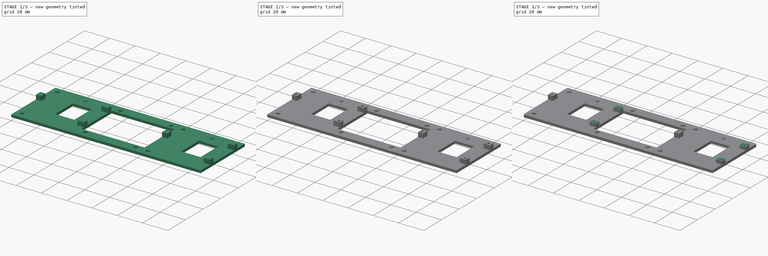
[diagram: build sequence overview — one tinted view per stage of 3, left to right]
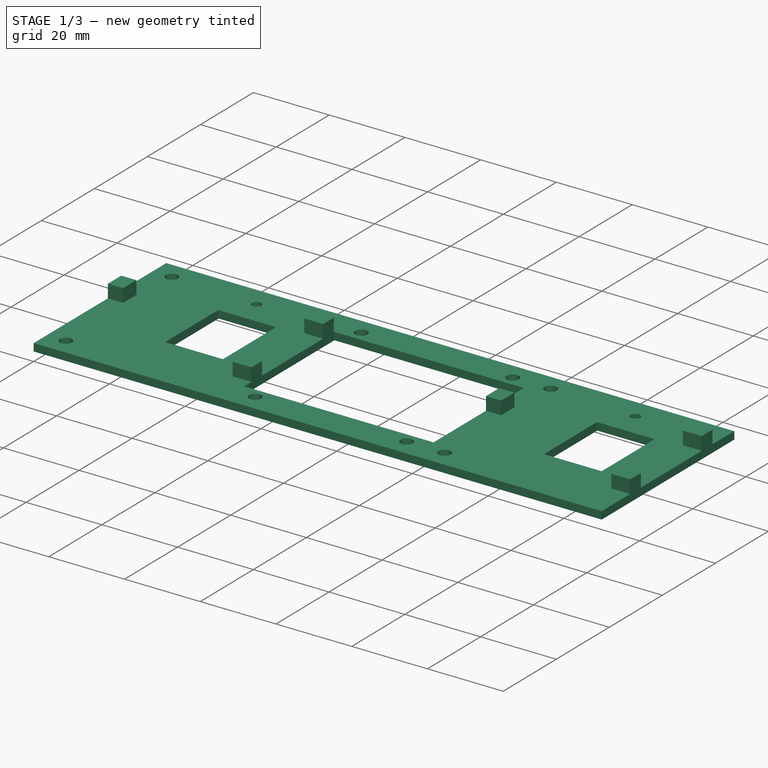
[diagram: stage 1 of 3 — iso view after this stage's code; geometry added in this stage tinted green]
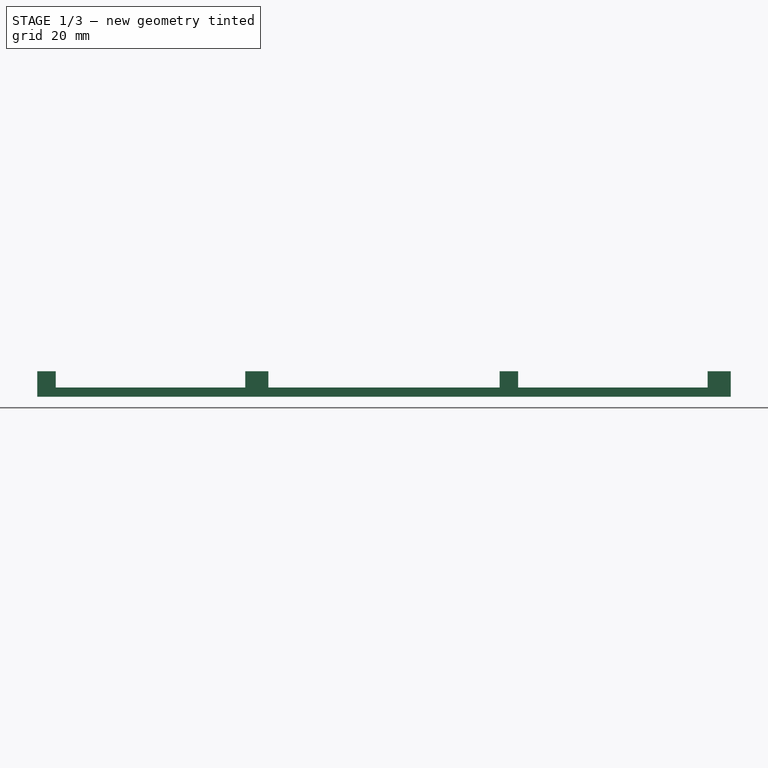
[diagram: stage 1 of 3 — front view after this stage's code; geometry added in this stage tinted green]
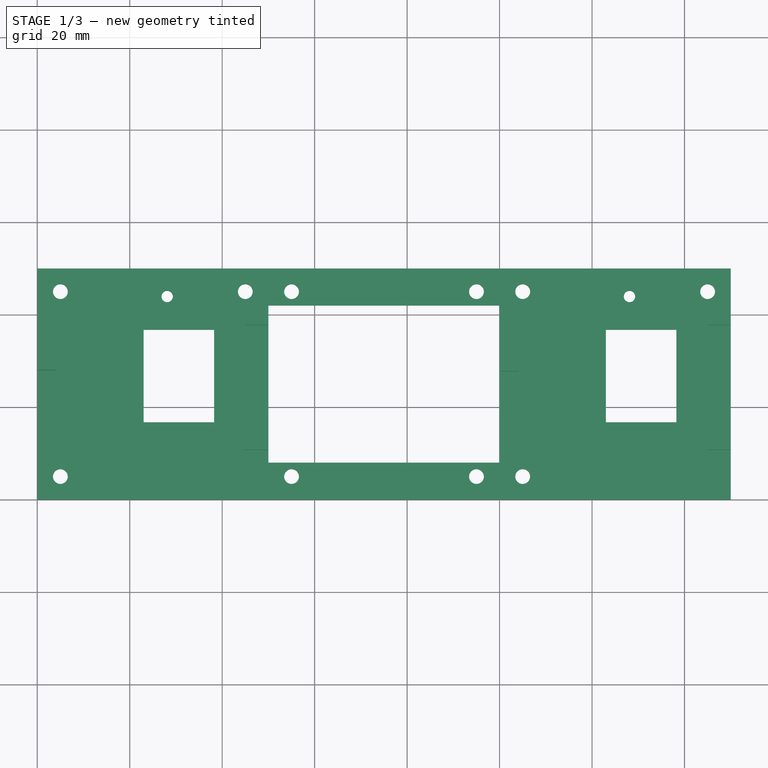
[diagram: stage 1 of 3 — top view after this stage's code; geometry added in this stage tinted green]
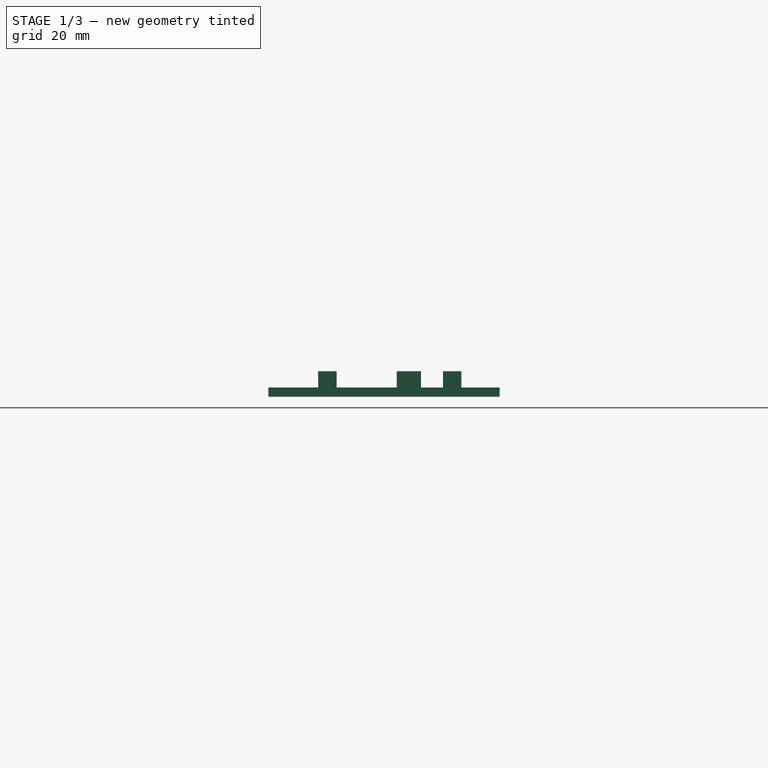
[diagram: stage 1 of 3 — right view after this stage's code; geometry added in this stage tinted green]
FCSTD DOCUMENT  (FreeCAD 0.19R24291 (Git))
Label: Adapter Plate Modified
License: All rights reserved
LicenseURL: http://en.wikipedia.org/wiki/All_rights_reserved
objects: Sketcher::SketchObject×4, PartDesign::Pad×2, PartDesign::Pocket×2, PartDesign::Fillet×1, PartDesign::Body×1
note: 15 computed .brp shape members not serialized (recipe doc carries the construction recipe); baked Part::Feature solids carry a one-line shape summary decoded from their .brp

FEATURE [Sketcher::SketchObject] Sketch
  FullyConstrained = true
  MapMode = 5
  Support = -> [XY_Plane]
  sketch-geometry (41):
    g0: LineSegment StartX=0 StartY=0 StartZ=0 EndX=150 EndY=0 EndZ=0
    g1: LineSegment StartX=150 StartY=0 StartZ=0 EndX=150 EndY=50 EndZ=0
    g2: LineSegment StartX=150 StartY=50 StartZ=0 EndX=0 EndY=50 EndZ=0
    g3: LineSegment StartX=0 StartY=50 StartZ=0 EndX=0 EndY=0 EndZ=0
    g4: LineSegment StartX=50 StartY=42 StartZ=0 EndX=100 EndY=42 EndZ=0
    g5: LineSegment StartX=100 StartY=42 StartZ=0 EndX=100 EndY=8 EndZ=0
    g6: LineSegment StartX=100 StartY=8 StartZ=0 EndX=50 EndY=8 EndZ=0
    g7: LineSegment StartX=50 StartY=8 StartZ=0 EndX=50 EndY=42 EndZ=0
    g8: LineSegment StartX=23 StartY=36.75 StartZ=0 EndX=38.25 EndY=36.75 EndZ=0
    g9: LineSegment StartX=38.25 StartY=36.75 StartZ=0 EndX=38.25 EndY=16.75 EndZ=0
    g10: LineSegment StartX=38.25 StartY=16.75 StartZ=0 EndX=23 EndY=16.75 EndZ=0
    g11: LineSegment StartX=23 StartY=16.75 StartZ=0 EndX=23 EndY=36.75 EndZ=0
    g12: LineSegment StartX=123 StartY=36.75 StartZ=0 EndX=138.25 EndY=36.75 EndZ=0
    g13: LineSegment StartX=138.25 StartY=36.75 StartZ=0 EndX=138.25 EndY=16.75 EndZ=0
    g14: LineSegment StartX=138.25 StartY=16.75 StartZ=0 EndX=123 EndY=16.75 EndZ=0
    g15: LineSegment StartX=123 StartY=16.75 StartZ=0 EndX=123 EndY=36.75 EndZ=0
    g16: Circle CenterX=5 CenterY=45 CenterZ=0 NormalX=0 NormalY=0 NormalZ=1 AngleXU=0 Radius=1.6
    g17: Circle CenterX=5 CenterY=5 CenterZ=0 NormalX=0 NormalY=0 NormalZ=1 AngleXU=0 Radius=1.6
    g18: Circle CenterX=45 CenterY=45 CenterZ=0 NormalX=0 NormalY=0 NormalZ=1 AngleXU=0 Radius=1.6
    g19: Circle CenterX=55 CenterY=45 CenterZ=0 NormalX=0 NormalY=0 NormalZ=1 AngleXU=0 Radius=1.6
    g20: Circle CenterX=55 CenterY=5 CenterZ=0 NormalX=0 NormalY=0 NormalZ=1 AngleXU=0 Radius=1.6
    g21: Circle CenterX=95 CenterY=45 CenterZ=0 NormalX=0 NormalY=0 NormalZ=1 AngleXU=0 Radius=1.6
    g22: Circle CenterX=105 CenterY=45 CenterZ=0 NormalX=0 NormalY=0 NormalZ=1 AngleXU=0 Radius=1.6
    g23: Circle CenterX=95 CenterY=5 CenterZ=0 NormalX=0 NormalY=0 NormalZ=1 AngleXU=0 Radius=1.6
    g24: Circle CenterX=105 CenterY=5 CenterZ=0 NormalX=0 NormalY=0 NormalZ=1 AngleXU=0 Radius=1.6
    g25: Circle CenterX=145 CenterY=45 CenterZ=0 NormalX=0 NormalY=0 NormalZ=1 AngleXU=0 Radius=1.6
    g26: Circle CenterX=128.1 CenterY=43.95 CenterZ=0 NormalX=0 NormalY=0 NormalZ=1 AngleXU=0 Radius=1.23
    g27: Circle CenterX=28.1 CenterY=43.95 CenterZ=0 NormalX=0 NormalY=0 NormalZ=1 AngleXU=0 Radius=1.23
    g28: LineSegment StartX=5 StartY=45 StartZ=0 EndX=45 EndY=45 EndZ=0
    g29: LineSegment StartX=45 StartY=45 StartZ=0 EndX=55 EndY=45 EndZ=0
    g30: LineSegment StartX=95 StartY=45 StartZ=0 EndX=55 EndY=45 EndZ=0
    g31: LineSegment StartX=95 StartY=45 StartZ=0 EndX=105 EndY=45 EndZ=0
    g32: LineSegment StartX=105 StartY=45 StartZ=0 EndX=145 EndY=45 EndZ=0
    g33: LineSegment StartX=5 StartY=45 StartZ=0 EndX=5 EndY=5 EndZ=0
    g34: LineSegment StartX=55 StartY=45 StartZ=0 EndX=55 EndY=5 EndZ=0
    g35: LineSegment StartX=95 StartY=45 StartZ=0 EndX=95 EndY=5 EndZ=0
    g36: LineSegment StartX=105 StartY=45 StartZ=0 EndX=105 EndY=5 EndZ=0
    g37: LineSegment StartX=5 StartY=5 StartZ=0 EndX=55 EndY=5 EndZ=0
    g38: LineSegment StartX=55 StartY=5 StartZ=0 EndX=95 EndY=5 EndZ=0
    g39: LineSegment StartX=95 StartY=5 StartZ=0 EndX=105 EndY=5 EndZ=0
    g40: LineSegment StartX=28.1 StartY=43.95 StartZ=0 EndX=128.1 EndY=43.95 EndZ=0
  constraints (109):
    c: Coincident(g0,g1)
    c: Coincident(g1,g2)
    c: Coincident(g2,g3)
    c: Coincident(g3,g0)
    c: Horizontal(g0)
    c: Horizontal(g2)
    c: Vertical(g1)
    c: Vertical(g3)
    c: Coincident(g0,g-1)
    c: DistanceX(g2,g2) = 150
    c: DistanceY(g3,g3) = 50
    c: Coincident(g4,g5)
    c: Coincident(g5,g6)
    c: Coincident(g6,g7)
    c: Coincident(g7,g4)
    c: Horizontal(g4)
    c: Horizontal(g6)
    c: Vertical(g5)
    c: Vertical(g7)
    c: Coincident(g8,g9)
    c: Coincident(g9,g10)
    c: Coincident(g10,g11)
    c: Coincident(g11,g8)
    c: Horizontal(g8)
    c: Horizontal(g10)
    c: Vertical(g9)
    c: Vertical(g11)
    c: Coincident(g12,g13)
    c: Coincident(g13,g14)
    c: Coincident(g14,g15)
    c: Coincident(g15,g12)
    c: Horizontal(g12)
    c: Horizontal(g14)
    c: Vertical(g13)
    c: Vertical(g15)
    c: Equal(g16,g17)
    c: Equal(g17,g18)
    c: Equal(g18,g19)
    c: Equal(g19,g20)
    c: Equal(g20,g23)
    c: Equal(g23,g24)
    c: Equal(g24,g22)
    c: Equal(g22,g21)
    c: Equal(g21,g25)
    c: Diameter(g16) = 3.2
    c: Equal(g27,g26)
    c: Diameter(g27) = 2.46
    c: DistanceX(g14,g14) = 15.25
    c: DistanceX(g10,g10) = 15.25
    c: DistanceX(g2,g8) = 23
    c: DistanceX(g8,g4) = 11.75
    c: DistanceX(g12,g1) = 11.75
    c: DistanceY(g11,g11) = 20
    c: DistanceY(g7,g7) = 34
    c: DistanceY(g15,g15) = 20
    c: DistanceY(g12,g1) = 13.25
    c: DistanceY(g4,g2) = 8
    c: DistanceY(g8,g2) = 13.25
    c: DistanceX(g6,g6) = 50
    c: Coincident(g28,g16)
    c: Coincident(g28,g18)
    c: Coincident(g29,g18)
    c: Coincident(g29,g19)
    c: Coincident(g30,g21)
    c: Coincident(g30,g19)
    c: Horizontal(g30)
    c: Coincident(g31,g21)
    c: Coincident(g31,g22)
    c: Coincident(g32,g22)
    c: Coincident(g32,g25)
    c: Horizontal(g32)
    c: Horizontal(g31)
    c: Horizontal(g29)
    c: Horizontal(g28)
    c: DistanceY(g16,g2) = 5
    c: DistanceX(g2,g16) = 5
    c: DistanceX(g16,g18) = 40
    c: DistanceX(g18,g19) = 10
    c: DistanceX(g19,g21) = 40
    c: DistanceX(g21,g22) = 10
    c: DistanceX(g32,g32) = 40
    c: Coincident(g33,g16)
    c: Coincident(g33,g17)
    c: Coincident(g34,g19)
    c: Coincident(g34,g20)
    c: Coincident(g35,g21)
    c: Coincident(g35,g23)
    c: Coincident(g36,g22)
    c: Coincident(g36,g24)
    c: Coincident(g37,g17)
    c: Coincident(g37,g20)
    c: Horizontal(g37)
    c: Coincident(g38,g20)
    c: Coincident(g38,g23)
    c: Horizontal(g38)
    c: Coincident(g39,g23)
    c: Coincident(g39,g24)
    c: Horizontal(g39)
    c: Vertical(g33)
    c: Vertical(g34)
    c: Vertical(g35)
    c: Vertical(g36)
    c: DistanceY(g0,g17) = 5
    c: DistanceY(g27,g2) = 6.05
    c: Coincident(g40,g27)
    c: Horizontal(g40)
    c: Coincident(g40,g26)
    c: DistanceX(g2,g27) = 28.1
    c: DistanceX(g26,g1) = 21.9
FEATURE [PartDesign::Pad] Pad
  Direction = (1,1,1)
  Length = 2
  Length2 = 100
  Profile = -> Sketch
  Type = 0
FEATURE [Sketcher::SketchObject] Sketch001
  ExternalGeometry = -> [Pad]
  FullyConstrained = true
  MapMode = 5
  Placement = pos=(0,0,2) rot=(0,0,1;0rad)
  Support = -> [Pad]
  sketch-geometry (27):
    g0: LineSegment StartX=50 StartY=41.75 StartZ=0 EndX=45 EndY=41.75 EndZ=0
    g1: LineSegment StartX=45 StartY=41.75 StartZ=0 EndX=45 EndY=37.75 EndZ=0
    g2: LineSegment StartX=45 StartY=37.75 StartZ=0 EndX=50 EndY=37.75 EndZ=0
    g3: LineSegment StartX=50 StartY=37.75 StartZ=0 EndX=50 EndY=41.75 EndZ=0
    g4: LineSegment StartX=50 StartY=14.75 StartZ=0 EndX=45 EndY=14.75 EndZ=0
    g5: LineSegment StartX=45 StartY=14.75 StartZ=0 EndX=45 EndY=10.75 EndZ=0
    g6: LineSegment StartX=45 StartY=10.75 StartZ=0 EndX=50 EndY=10.75 EndZ=0
    g7: LineSegment StartX=50 StartY=10.75 StartZ=0 EndX=50 EndY=14.75 EndZ=0
    g8: LineSegment StartX=45 StartY=37.75 StartZ=0 EndX=45 EndY=14.75 EndZ=0
    g9: LineSegment StartX=4 StartY=33 StartZ=0 EndX=-4e-16 EndY=33 EndZ=0
    g10: LineSegment StartX=-4e-16 StartY=33 StartZ=0 EndX=-4e-16 EndY=28 EndZ=0
    g11: LineSegment StartX=-4e-16 StartY=28 StartZ=0 EndX=4 EndY=28 EndZ=0
    g12: LineSegment StartX=4 StartY=28 StartZ=0 EndX=4 EndY=33 EndZ=0
    g13: LineSegment StartX=150 StartY=41.75 StartZ=0 EndX=145 EndY=41.75 EndZ=0
    g14: LineSegment StartX=145 StartY=41.75 StartZ=0 EndX=145 EndY=37.75 EndZ=0
    g15: LineSegment StartX=145 StartY=37.75 StartZ=0 EndX=150 EndY=37.75 EndZ=0
    g16: LineSegment StartX=150 StartY=37.75 StartZ=0 EndX=150 EndY=41.75 EndZ=0
    g17: LineSegment StartX=150 StartY=14.75 StartZ=0 EndX=145 EndY=14.75 EndZ=0
    g18: LineSegment StartX=145 StartY=14.75 StartZ=0 EndX=145 EndY=10.75 EndZ=0
    g19: LineSegment StartX=145 StartY=10.75 StartZ=0 EndX=150 EndY=10.75 EndZ=0
    g20: LineSegment StartX=150 StartY=10.75 StartZ=0 EndX=150 EndY=14.75 EndZ=0
    g21: LineSegment StartX=145 StartY=37.75 StartZ=0 EndX=145 EndY=14.75 EndZ=0
    g22: LineSegment StartX=104 StartY=32.75 StartZ=0 EndX=100 EndY=32.75 EndZ=0
    g23: LineSegment StartX=100 StartY=32.75 StartZ=0 EndX=100 EndY=27.75 EndZ=0
    g24: LineSegment StartX=100 StartY=27.75 StartZ=0 EndX=104 EndY=27.75 EndZ=0
    g25: LineSegment StartX=104 StartY=27.75 StartZ=0 EndX=104 EndY=32.75 EndZ=0
    g26: LineSegment StartX=50 StartY=41.75 StartZ=0 EndX=145 EndY=41.75 EndZ=0
  constraints (77):
    c: Coincident(g0,g1)
    c: Coincident(g1,g2)
    c: Coincident(g2,g3)
    c: Coincident(g3,g0)
    c: Horizontal(g0)
    c: Horizontal(g2)
    c: Vertical(g1)
    c: Vertical(g3)
    c: PointOnObject(g0,g-3)
    c: DistanceX(g0,g0) = 5
    c: DistanceY(g1,g1) = 4
    c: DistanceY(g0,g-13) = 0.25
    c: Coincident(g4,g5)
    c: Coincident(g5,g6)
    c: Coincident(g6,g7)
    c: Coincident(g7,g4)
    c: Horizontal(g4)
    c: Horizontal(g6)
    c: Vertical(g5)
    c: Vertical(g7)
    c: PointOnObject(g4,g-3)
    c: Coincident(g8,g1)
    c: Coincident(g8,g4)
    c: Vertical(g8)
    c: DistanceY(g6,g2) = 27
    c: Equal(g5,g1)
    c: Coincident(g9,g10)
    c: Coincident(g10,g11)
    c: Coincident(g11,g12)
    c: Coincident(g12,g9)
    c: Horizontal(g9)
    c: Horizontal(g11)
    c: Vertical(g10)
    c: Vertical(g12)
    c: Equal(g9,g1)
    c: Equal(g12,g0)
    c: DistanceX(g9,g0) = 46
    c: DistanceY(g9,g-13) = 9
    c: Coincident(g13,g14)
    c: Coincident(g14,g15)
    c: Coincident(g15,g16)
    c: Coincident(g16,g13)
    c: Horizontal(g13)
    c: Horizontal(g15)
    c: Vertical(g14)
    c: Vertical(g16)
    c: Equal(g0,g13) = 5
    c: Equal(g1,g14) = 4
    c: Coincident(g17,g18)
    c: Coincident(g18,g19)
    c: Coincident(g19,g20)
    c: Coincident(g20,g17)
    c: Horizontal(g17)
    c: Horizontal(g19)
    c: Vertical(g18)
    c: Coincident(g21,g14)
    c: Coincident(g21,g17)
    c: Vertical(g21)
    c: DistanceY(g19,g15) = 27
    c: Equal(g18,g14)
    c: Coincident(g22,g23)
    c: Coincident(g23,g24)
    c: Coincident(g24,g25)
    c: Coincident(g25,g22)
    c: Horizontal(g22)
    c: Horizontal(g24)
    c: Vertical(g23)
    c: Vertical(g25)
    c: Equal(g22,g14)
    c: Equal(g25,g13)
    c: DistanceX(g22,g13) = 46
    c: DistanceX(g0,g13) = 100
    c: Coincident(g26,g0)
    c: Coincident(g26,g13)
    c: Horizontal(g26)
    c: Tangent(g20,g-16)
    c: DistanceY(g22,g13) = 9
FEATURE [PartDesign::Pad] Pad001
  BaseFeature = -> Pad
  Direction = (1,1,1)
  Length = 3.5
  Length2 = 100
  Profile = -> Sketch001
  Type = 0
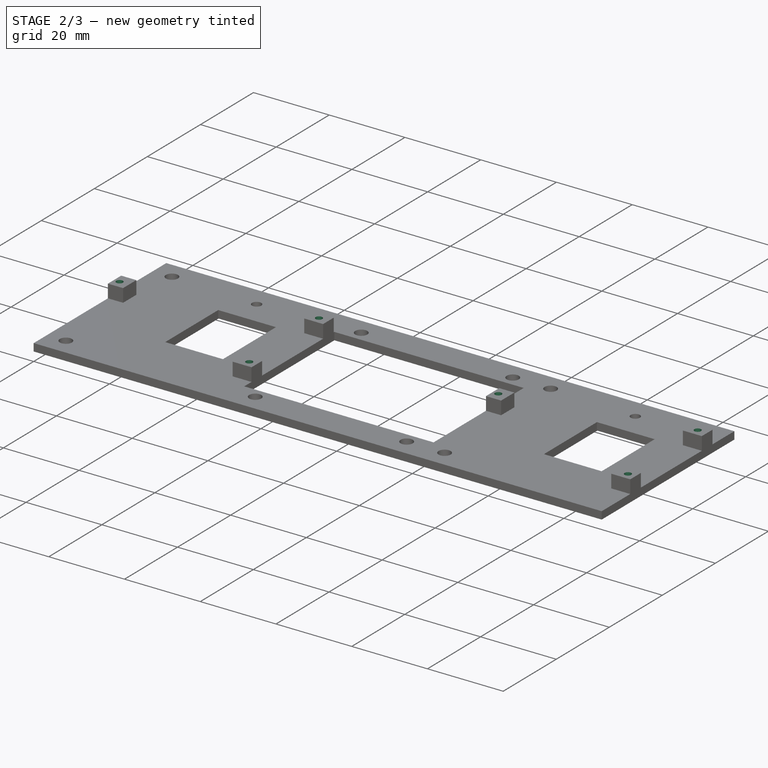
[diagram: stage 2 of 3 — iso view after this stage's code; geometry added in this stage tinted green]
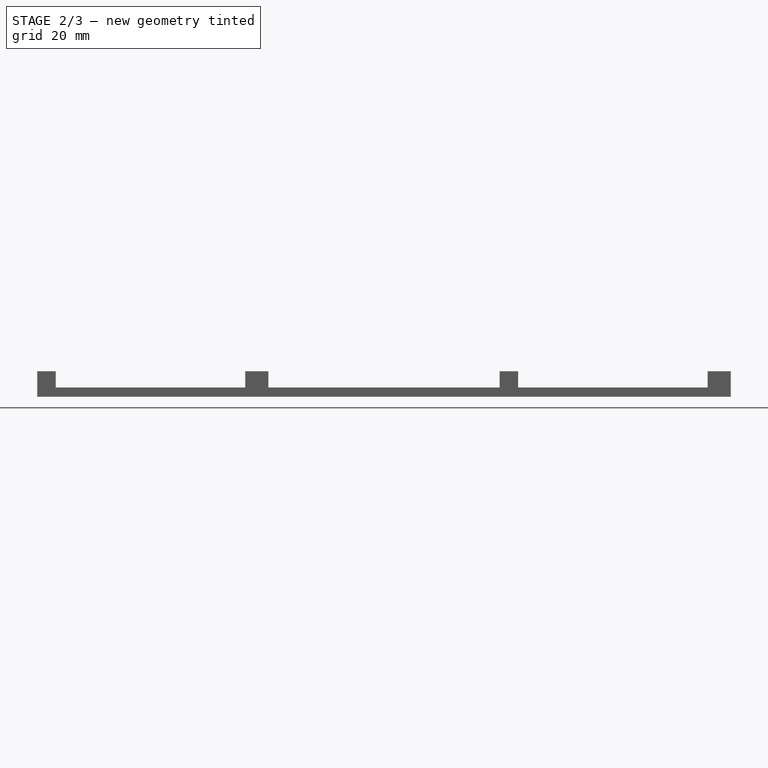
[diagram: stage 2 of 3 — front view after this stage's code; geometry added in this stage tinted green]
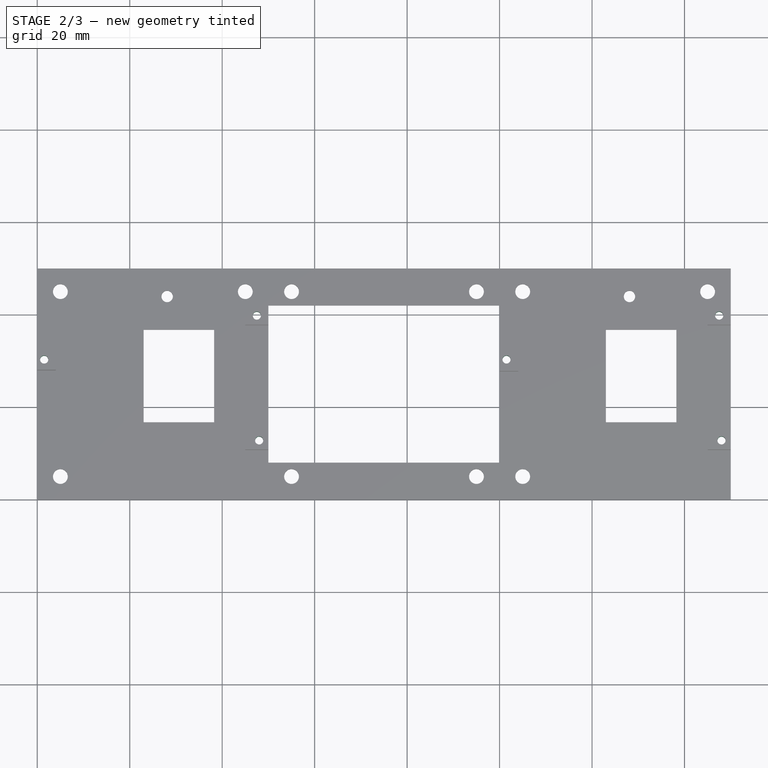
[diagram: stage 2 of 3 — top view after this stage's code; geometry added in this stage tinted green]
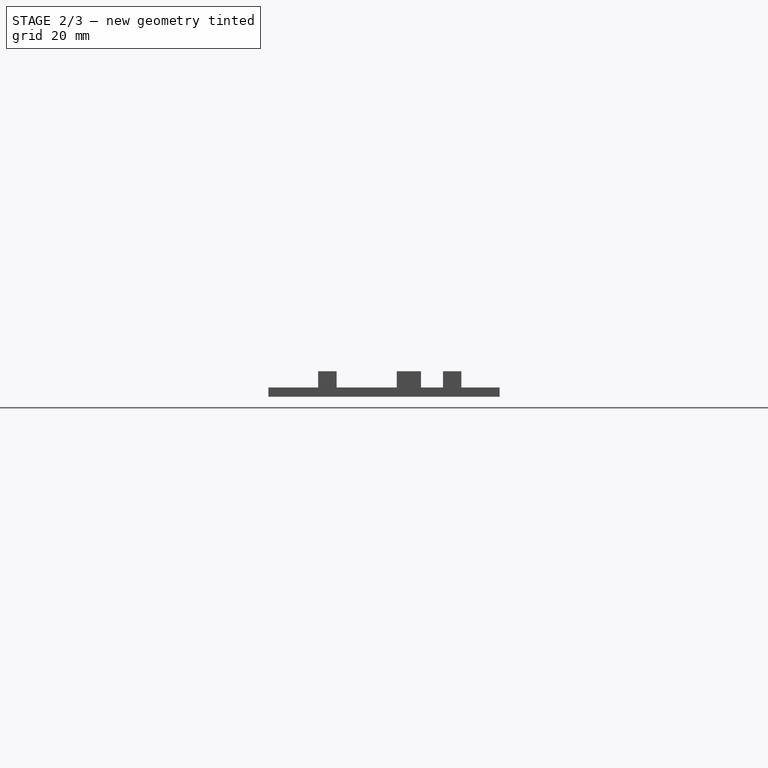
[diagram: stage 2 of 3 — right view after this stage's code; geometry added in this stage tinted green]
FEATURE [Sketcher::SketchObject] Sketch002
  ExternalGeometry = -> [Pad001]
  FullyConstrained = true
  MapMode = 5
  Placement = pos=(0,0,5.5) rot=(0,0,1;0rad)
  Support = -> [Pad001]
  sketch-geometry (9):
    g0: Circle CenterX=47.5 CenterY=39.75 CenterZ=0 NormalX=0 NormalY=0 NormalZ=1 AngleXU=0 Radius=0.875
    g1: Circle CenterX=48 CenterY=12.75 CenterZ=0 NormalX=0 NormalY=0 NormalZ=1 AngleXU=0 Radius=0.875
    g2: Circle CenterX=101.5 CenterY=30.25 CenterZ=0 NormalX=0 NormalY=0 NormalZ=1 AngleXU=0 Radius=0.875
    g3: Circle CenterX=1.5 CenterY=30.25 CenterZ=0 NormalX=0 NormalY=0 NormalZ=1 AngleXU=0 Radius=0.875
    g4: Circle CenterX=147.5 CenterY=39.75 CenterZ=0 NormalX=0 NormalY=0 NormalZ=1 AngleXU=0 Radius=0.875
    g5: Circle CenterX=148 CenterY=12.75 CenterZ=0 NormalX=0 NormalY=0 NormalZ=1 AngleXU=0 Radius=0.875
    g6: LineSegment StartX=47.5 StartY=39.75 StartZ=0 EndX=147.5 EndY=39.75 EndZ=0
    g7: LineSegment StartX=1.5 StartY=30.25 StartZ=0 EndX=101.5 EndY=30.25 EndZ=0
    g8: LineSegment StartX=48 StartY=12.75 StartZ=0 EndX=148 EndY=12.75 EndZ=0
  constraints (24):
    c: Coincident(g6,g0)
    c: Coincident(g6,g4)
    c: Horizontal(g6)
    c: Coincident(g7,g3)
    c: Coincident(g7,g2)
    c: Horizontal(g7)
    c: Coincident(g8,g1)
    c: Coincident(g8,g5)
    c: Horizontal(g8)
    c: Equal(g3,g0)
    c: Equal(g0,g1)
    c: Equal(g1,g2)
    c: Equal(g2,g5)
    c: Equal(g5,g4)
    c: Diameter(g3) = 1.75
    c: DistanceX(g0,g1) = 0.5
    c: DistanceX(g4,g5) = 0.5
    c: DistanceX(g2,g4) = 46
    c: DistanceX(g3,g0) = 46
    c: DistanceY(g3,g0) = 9.5
    c: DistanceY(g5,g4) = 27
    c: DistanceX(g0,g-6) = 2.5
    c: DistanceY(g0,g-6) = 2
    c: DistanceX(g0,g4) = 100
FEATURE [PartDesign::Pocket] Pocket
  BaseFeature = -> Pad001
  Length = 0
  Length2 = 100
  Profile = -> Sketch002
  Type = 3
  UpToFace = -> Pad001 [Face4]
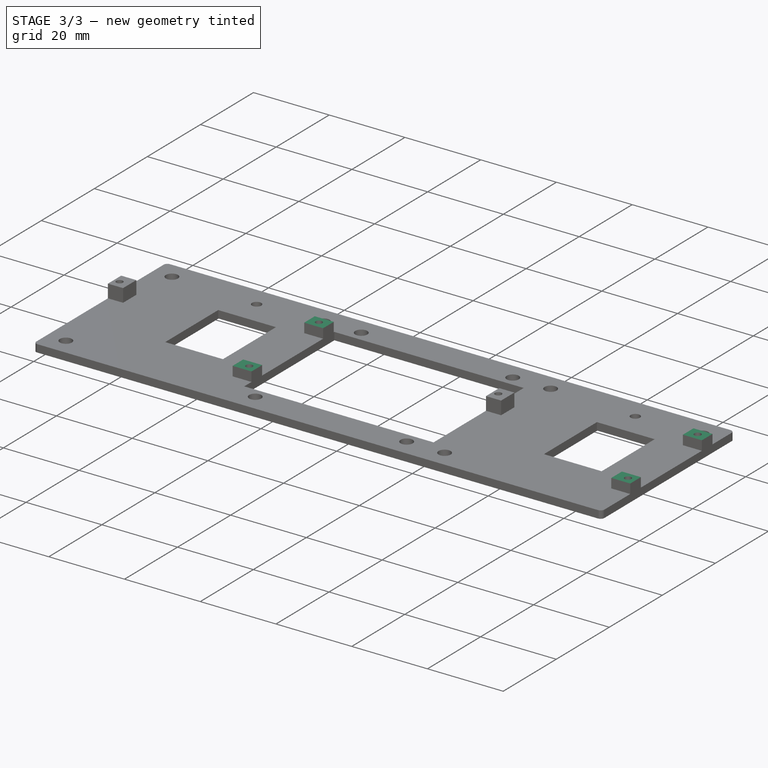
[diagram: stage 3 of 3 — iso view after this stage's code; geometry added in this stage tinted green]
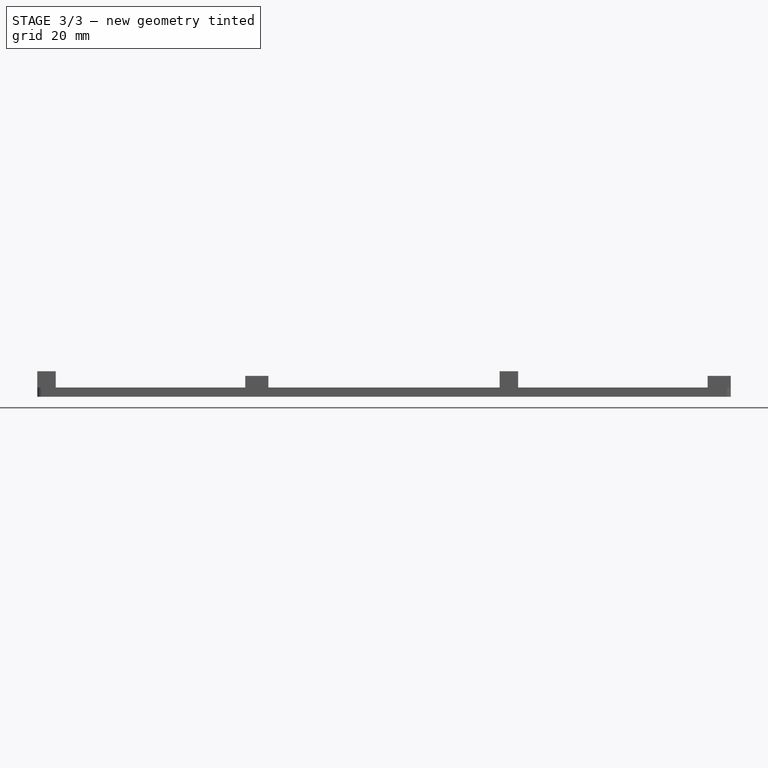
[diagram: stage 3 of 3 — front view after this stage's code; geometry added in this stage tinted green]
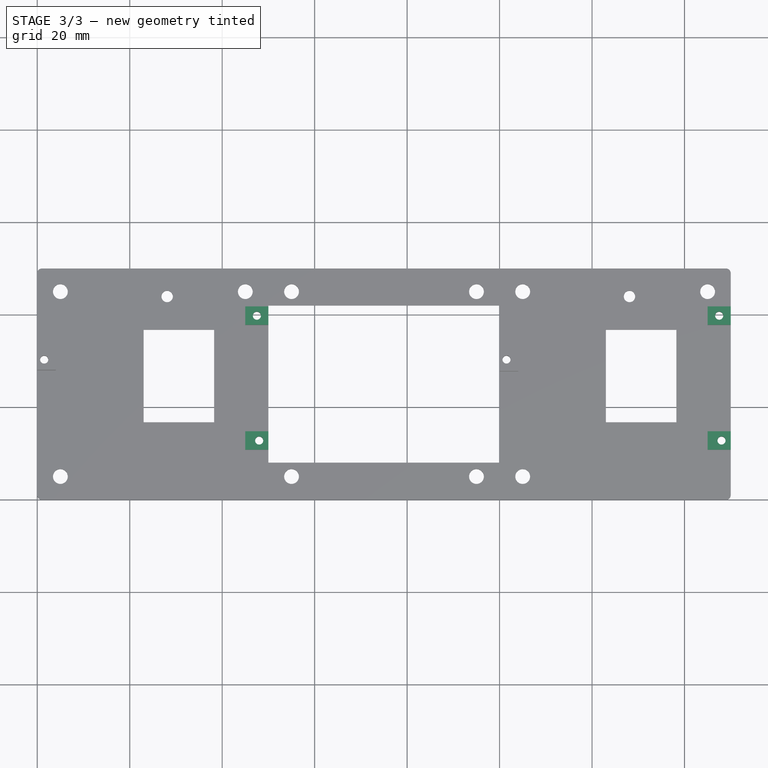
[diagram: stage 3 of 3 — top view after this stage's code; geometry added in this stage tinted green]
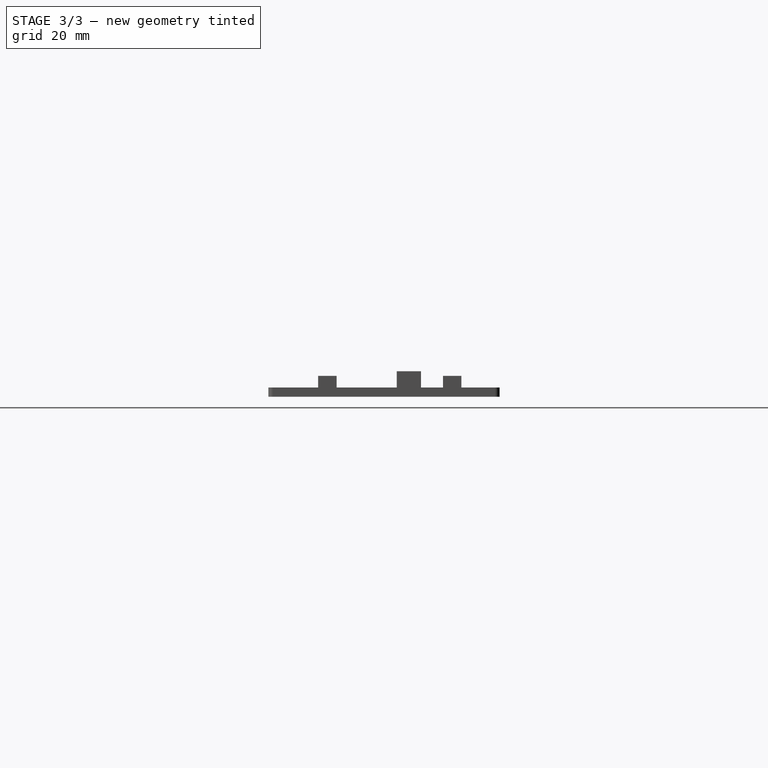
[diagram: stage 3 of 3 — right view after this stage's code; geometry added in this stage tinted green]
FEATURE [Sketcher::SketchObject] Sketch003
  ExternalGeometry = -> [Pocket]
  FullyConstrained = true
  MapMode = 5
  Placement = pos=(0,0,5.5) rot=(0,0,1;0rad)
  Support = -> [Pocket]
  sketch-geometry (16):
    g0: LineSegment StartX=50 StartY=41.75 StartZ=0 EndX=45 EndY=41.75 EndZ=0
    g1: LineSegment StartX=45 StartY=41.75 StartZ=0 EndX=45 EndY=37.75 EndZ=0
    g2: LineSegment StartX=45 StartY=37.75 StartZ=0 EndX=50 EndY=37.75 EndZ=0
    g3: LineSegment StartX=50 StartY=37.75 StartZ=0 EndX=50 EndY=41.75 EndZ=0
    g4: LineSegment StartX=50 StartY=14.75 StartZ=0 EndX=45 EndY=14.75 EndZ=0
    g5: LineSegment StartX=45 StartY=14.75 StartZ=0 EndX=45 EndY=10.75 EndZ=0
    g6: LineSegment StartX=45 StartY=10.75 StartZ=0 EndX=50 EndY=10.75 EndZ=0
    g7: LineSegment StartX=50 StartY=10.75 StartZ=0 EndX=50 EndY=14.75 EndZ=0
    g8: LineSegment StartX=150 StartY=14.75 StartZ=0 EndX=145 EndY=14.75 EndZ=0
    g9: LineSegment StartX=145 StartY=14.75 StartZ=0 EndX=145 EndY=10.75 EndZ=0
    g10: LineSegment StartX=145 StartY=10.75 StartZ=0 EndX=150 EndY=10.75 EndZ=0
    g11: LineSegment StartX=150 StartY=10.75 StartZ=0 EndX=150 EndY=14.75 EndZ=0
    g12: LineSegment StartX=145 StartY=37.75 StartZ=0 EndX=150 EndY=37.75 EndZ=0
    g13: LineSegment StartX=150 StartY=37.75 StartZ=0 EndX=150 EndY=41.75 EndZ=0
    g14: LineSegment StartX=150 StartY=41.75 StartZ=0 EndX=145 EndY=41.75 EndZ=0
    g15: LineSegment StartX=145 StartY=41.75 StartZ=0 EndX=145 EndY=37.75 EndZ=0
  constraints (40):
    c: Coincident(g0,g1)
    c: Coincident(g1,g2)
    c: Coincident(g2,g3)
    c: Coincident(g3,g0)
    c: Horizontal(g0)
    c: Horizontal(g2)
    c: Vertical(g1)
    c: Vertical(g3)
    c: Coincident(g0,g-4)
    c: Coincident(g1,g-3)
    c: Coincident(g4,g5)
    c: Coincident(g5,g6)
    c: Coincident(g6,g7)
    c: Coincident(g7,g4)
    c: Horizontal(g4)
    c: Horizontal(g6)
    c: Vertical(g5)
    c: Vertical(g7)
    c: Coincident(g4,g-5)
    c: Coincident(g5,g-6)
    c: Coincident(g8,g9)
    c: Coincident(g9,g10)
    c: Coincident(g10,g11)
    c: Coincident(g11,g8)
    c: Horizontal(g8)
    c: Horizontal(g10)
    c: Vertical(g9)
    c: Vertical(g11)
    c: Coincident(g8,g-8)
    c: Coincident(g9,g-7)
    c: Coincident(g12,g13)
    c: Coincident(g13,g14)
    c: Coincident(g14,g15)
    c: Coincident(g15,g12)
    c: Horizontal(g12)
    c: Horizontal(g14)
    c: Vertical(g13)
    c: Vertical(g15)
    c: Coincident(g12,g-9)
    c: Coincident(g13,g-10)
FEATURE [PartDesign::Pocket] Pocket001
  BaseFeature = -> Pocket
  Length = 1
  Length2 = 100
  Profile = -> Sketch003
  Type = 0
FEATURE [PartDesign::Fillet] Fillet
  Base = -> Pocket001 [Edge1,Edge5,Edge2,Edge10]
  BaseFeature = -> Pocket001
  Radius = 1
  SupportTransform = false
FEATURE [PartDesign::Body] Body
  Group = -> [Sketch,Pad,Sketch001,Pad001,Sketch002,Pocket,Sketch003,Pocket001,Fillet]
  Origin = -> Origin
  Tip = -> Fillet
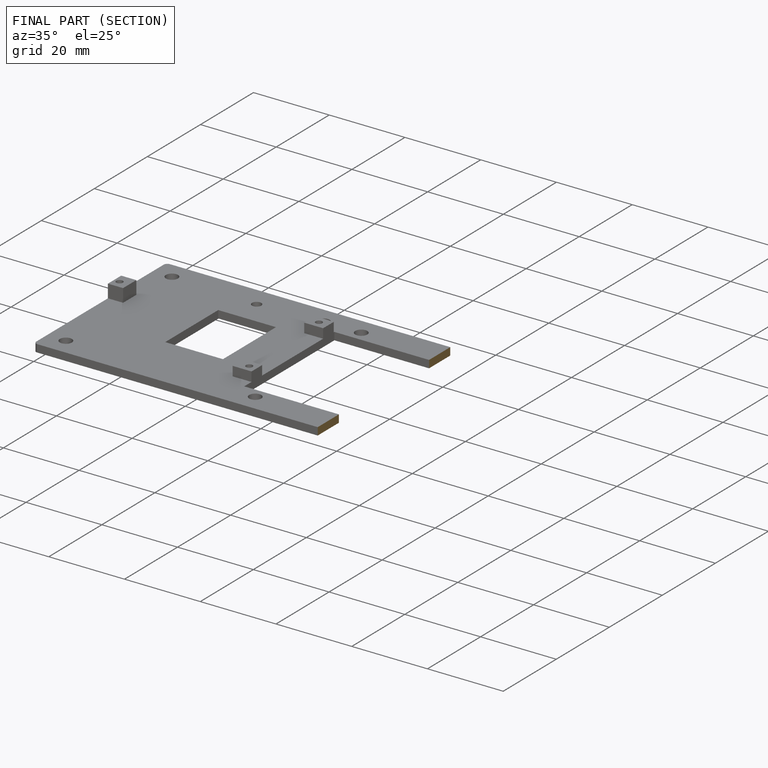
[diagram: finished part — half-section view (interior)]
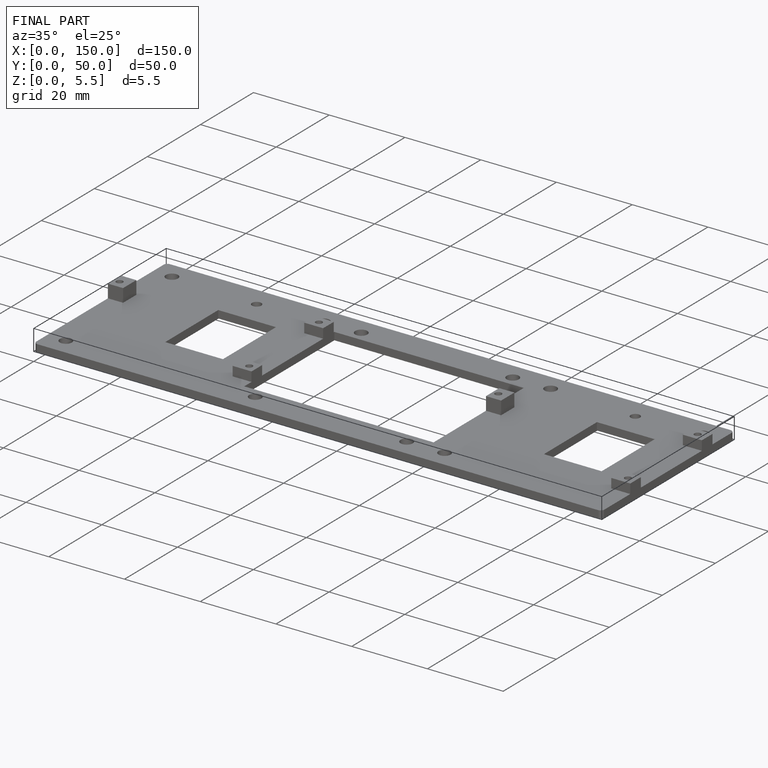
[diagram: finished part — iso view with bounding-box wireframe]
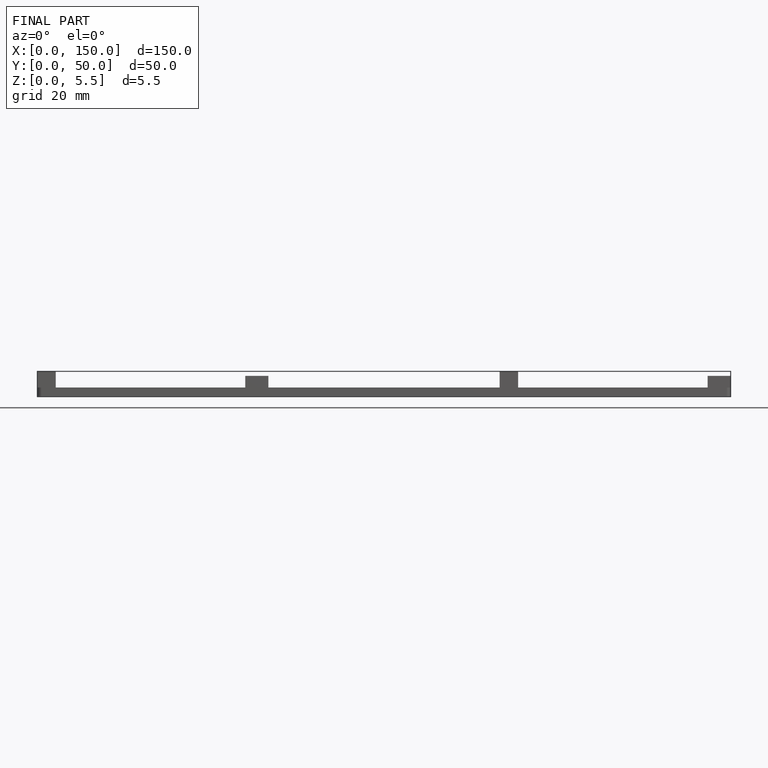
[diagram: finished part — front view with bounding-box wireframe]
